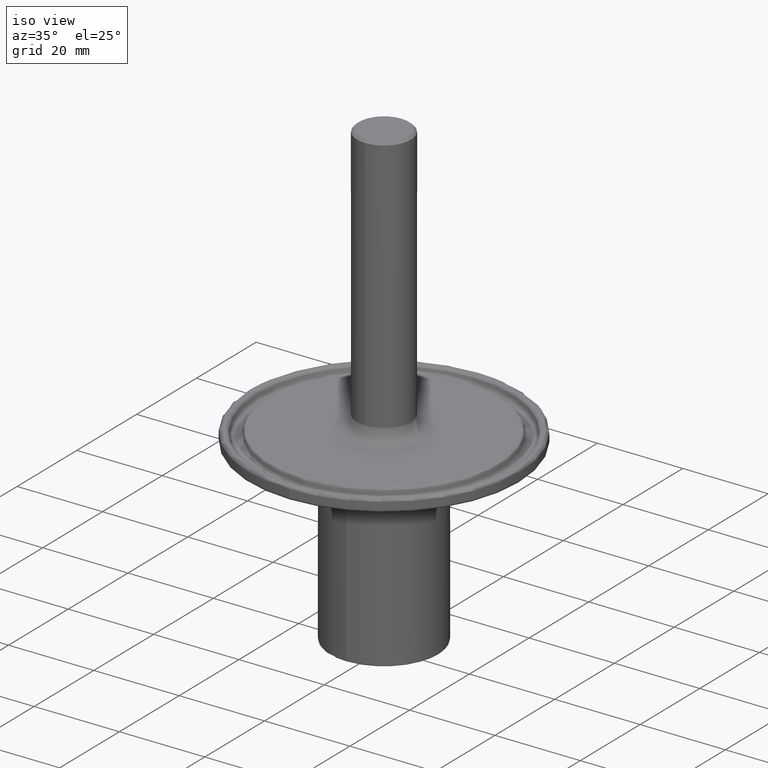
[diagram: clean part render]
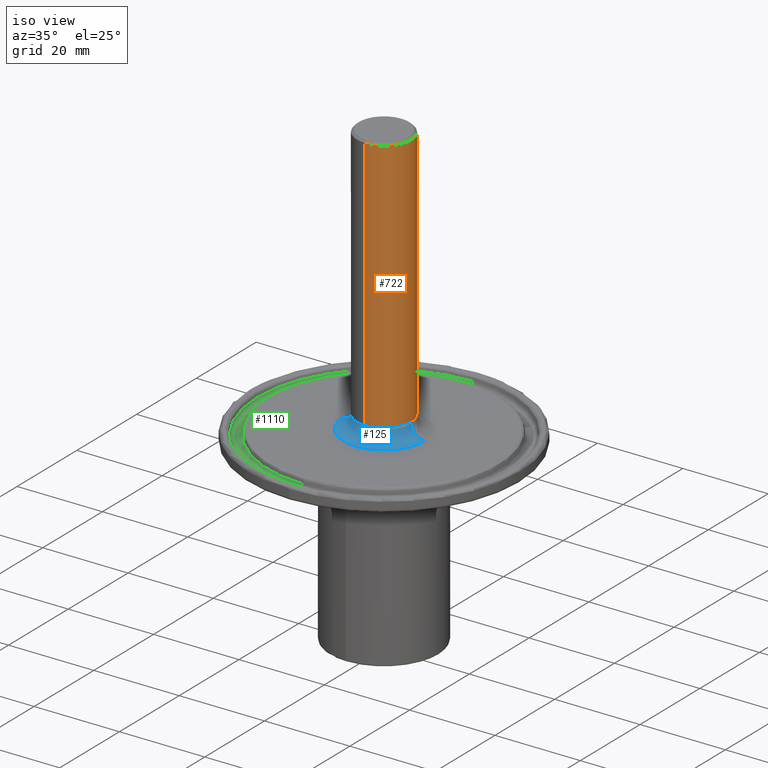
[diagram: same view with three faces highlighted in distinct colors, each labeled with its STEP entity id]
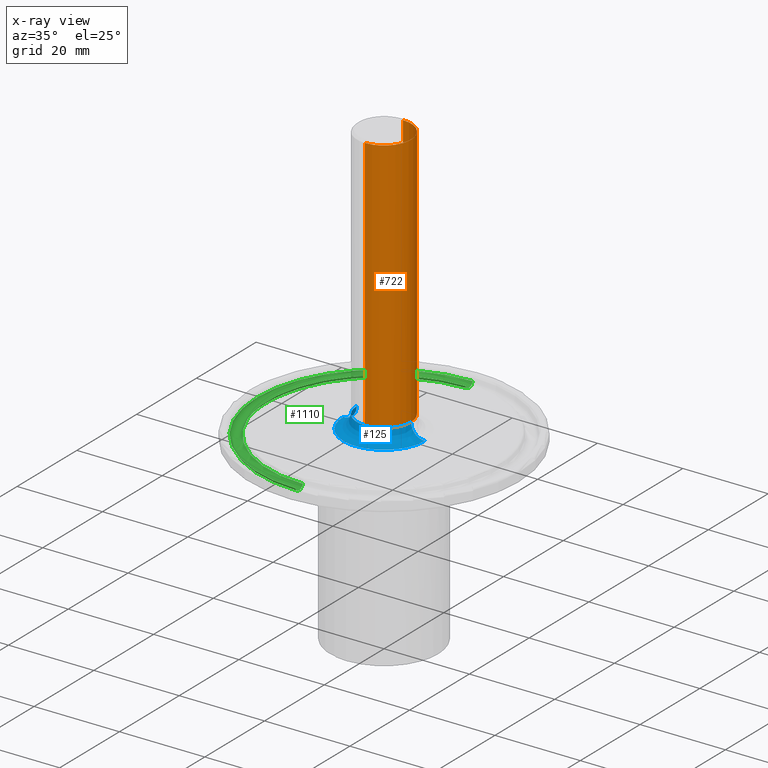
[diagram: x-ray of the same camera — body ghosted, the three highlighted faces saturated]
A machine part, iso view with three faces highlighted in distinct colors.
The next image is the same camera in x-ray (body ghosted, the three faces saturated) — at least one of them is partly hidden behind the body in this view.
Their STEP definitions:

[orange] entity #722 — the highlighted cylindrical surface (edge-blend (fillet) strip) has radius 6.35 mm, axis along (0, 0, -1).
#38 = EDGE_CURVE ( 'NONE', #985, #1361, #1377, .T. ) ;
#85 = CIRCLE ( 'NONE', #1450, 0.2499999999999990000 ) ;
#101 = DIRECTION ( 'NONE',  ( 0.0000000000000000000, 1.000000000000000000, 0.0000000000000000000 ) ) ;
#120 = CIRCLE ( 'NONE', #387, 0.2499999999999990300 ) ;
#220 = DIRECTION ( 'NONE',  ( 0.0000000000000000000, 0.0000000000000000000, 1.000000000000000000 ) ) ;
#387 = AXIS2_PLACEMENT_3D ( 'NONE', #2342, #220, #1002 ) ;
#388 = VERTEX_POINT ( 'NONE', #1719 ) ;
#540 = EDGE_CURVE ( 'NONE', #388, #563, #85, .T. ) ;
#563 = VERTEX_POINT ( 'NONE', #1660 ) ;
#566 = LINE ( 'NONE', #756, #1048 ) ;
#722 = ADVANCED_FACE ( 'NONE', ( #1804 ), #1080, .T. ) ;
#729 = CARTESIAN_POINT ( 'NONE',  ( 0.2499999999999989700, -1.463865379496466200E-015, 1.875000000000000000 ) ) ;
#756 = CARTESIAN_POINT ( 'NONE',  ( 0.0000000000000000000, 0.2499999999999966100, 2.999999999999999600 ) ) ;
#857 = EDGE_CURVE ( 'NONE', #388, #1361, #566, .T. ) ;
#868 = CARTESIAN_POINT ( 'NONE',  ( 0.0000000000000000000, -3.371550375615952900E-015, 4.230000000000000400 ) ) ;
#936 = DIRECTION ( 'NONE',  ( 0.0000000000000000000, 7.970568263867499800E-016, -1.000000000000000000 ) ) ;
#950 = DIRECTION ( 'NONE',  ( 0.0000000000000000000, -1.000000000000000000, -1.092739197465709600E-015 ) ) ;
#985 = VERTEX_POINT ( 'NONE', #729 ) ;
#1002 = DIRECTION ( 'NONE',  ( 1.000000000000000000, 0.0000000000000000000, 0.0000000000000000000 ) ) ;
#1048 = VECTOR ( 'NONE', #2491, 39.37007874015748100 ) ;
#1080 = CYLINDRICAL_SURFACE ( 'NONE', #1633, 0.2499999999999990000 ) ;
#1155 = CARTESIAN_POINT ( 'NONE',  ( 3.061616997868370700E-017, -0.2500000000000005600, 1.875000000000000000 ) ) ;
#1205 = VECTOR ( 'NONE', #1492, 39.37007874015748100 ) ;
#1215 = ORIENTED_EDGE ( 'NONE', *, *, #2198, .T. ) ;
#1251 = DIRECTION ( 'NONE',  ( 0.0000000000000000000, 7.970568263867499800E-016, -1.000000000000000000 ) ) ;
#1341 = ORIENTED_EDGE ( 'NONE', *, *, #1898, .T. ) ;
#1361 = VERTEX_POINT ( 'NONE', #2044 ) ;
#1364 = ORIENTED_EDGE ( 'NONE', *, *, #38, .T. ) ;
#1377 = CIRCLE ( 'NONE', #1969, 0.2499999999999990000 ) ;
#1408 = LINE ( 'NONE', #1872, #1205 ) ;
#1450 = AXIS2_PLACEMENT_3D ( 'NONE', #868, #1251, #101 ) ;
#1459 = VERTEX_POINT ( 'NONE', #1155 ) ;
#1492 = DIRECTION ( 'NONE',  ( 0.0000000000000000000, 7.970568263867499800E-016, -1.000000000000000000 ) ) ;
#1633 = AXIS2_PLACEMENT_3D ( 'NONE', #1885, #936, #1724 ) ;
#1660 = CARTESIAN_POINT ( 'NONE',  ( 3.061616997890732400E-017, -0.2500000000018282600, 4.230000000000000400 ) ) ;
#1697 = CARTESIAN_POINT ( 'NONE',  ( 0.0000000000000000000, -1.479173464485808100E-015, 1.875000000000000000 ) ) ;
#1719 = CARTESIAN_POINT ( 'NONE',  ( 0.0000000000000000000, 0.2500000000018222600, 4.230000000000000400 ) ) ;
#1724 = DIRECTION ( 'NONE',  ( 0.0000000000000000000, 1.000000000000000000, 0.0000000000000000000 ) ) ;
#1804 = FACE_OUTER_BOUND ( 'NONE', #2106, .T. ) ;
#1872 = CARTESIAN_POINT ( 'NONE',  ( 3.061616997868370700E-017, -0.2500000000000013900, 2.999999999999999600 ) ) ;
#1885 = CARTESIAN_POINT ( 'NONE',  ( 0.0000000000000000000, -2.391170479160249800E-015, 2.999999999999999600 ) ) ;
#1898 = EDGE_CURVE ( 'NONE', #563, #1459, #1408, .T. ) ;
#1959 = ORIENTED_EDGE ( 'NONE', *, *, #540, .T. ) ;
#1969 = AXIS2_PLACEMENT_3D ( 'NONE', #1697, #2300, #950 ) ;
#1989 = ORIENTED_EDGE ( 'NONE', *, *, #857, .F. ) ;
#2044 = CARTESIAN_POINT ( 'NONE',  ( 2.038776371176236800E-047, 0.2499999999999975300, 1.875000000000000000 ) ) ;
#2106 = EDGE_LOOP ( 'NONE', ( #1959, #1341, #1215, #1364, #1989 ) ) ;
#2198 = EDGE_CURVE ( 'NONE', #1459, #985, #120, .T. ) ;
#2300 = DIRECTION ( 'NONE',  ( 1.492598692097504800E-031, -5.463695987328551100E-016, 1.000000000000000000 ) ) ;
#2342 = CARTESIAN_POINT ( 'NONE',  ( -1.136491450489234400E-016, -1.485540871001791700E-015, 1.875000000000000000 ) ) ;
#2491 = DIRECTION ( 'NONE',  ( 0.0000000000000000000, 7.970568263867499800E-016, -1.000000000000000000 ) ) ;

[blue] entity #125 — the highlighted face is a freeform B-spline surface patch.
#1 = CARTESIAN_POINT ( 'NONE',  ( -0.2258993253624237100, -0.3746553855250192000, 1.750000000000000000 ) ) ;
#11 = CARTESIAN_POINT ( 'NONE',  ( 0.2416920312134359900, -0.2872440330578684400, 1.749999999999998900 ) ) ;
#22 = CARTESIAN_POINT ( 'NONE',  ( 0.3703219163674877900, -0.05927419297823460100, 1.749999999999998900 ) ) ;
#32 = CARTESIAN_POINT ( 'NONE',  ( 0.2559859598989654400, -0.2743587110812255600, 1.749999999999999100 ) ) ;
#48 = CARTESIAN_POINT ( 'NONE',  ( -0.3644003608362524300, -0.08893091464120052300, 1.749999999999999100 ) ) ;
#50 = CARTESIAN_POINT ( 'NONE',  ( -0.3750020596087453300, -1.394849446176806200E-015, 1.750000000000000200 ) ) ;
#57 = CARTESIAN_POINT ( 'NONE',  ( -0.3589902938301571300, -0.1096798864633804400, 1.749999999999999100 ) ) ;
#64 = CARTESIAN_POINT ( 'NONE',  ( -0.3530722555778289000, -0.1270139453182453400, 1.749999999999999300 ) ) ;
#71 = CARTESIAN_POINT ( 'NONE',  ( -0.09854546575081485300, -0.3622000057685440500, 1.749999999999998900 ) ) ;
#75 = DIRECTION ( 'NONE',  ( 0.0000000000000000000, 0.0000000000000000000, 1.000000000000000000 ) ) ;
#96 = CARTESIAN_POINT ( 'NONE',  ( -0.2499999999999990000, -1.494481549475150200E-015, 1.875000000000000000 ) ) ;
#103 = ORIENTED_EDGE ( 'NONE', *, *, #1148, .T. ) ;
#120 = CIRCLE ( 'NONE', #387, 0.2499999999999990300 ) ;
#125 = ADVANCED_FACE ( 'NONE', ( #2090 ), #2040, .F. ) ;
#151 = CARTESIAN_POINT ( 'NONE',  ( -0.002356161286735071700, -0.2499888967614184200, 1.801776695296637000 ) ) ;
#161 = CARTESIAN_POINT ( 'NONE',  ( -0.3761116839898424600, 0.007090383043004910000, 1.750000000000000200 ) ) ;
#162 = CARTESIAN_POINT ( 'NONE',  ( 0.3749999999999985000, -1.322418022719366700E-015, 1.749999999999999600 ) ) ;
#169 = CARTESIAN_POINT ( 'NONE',  ( -0.2499555880319260800, 0.004712113285301613500, 1.801776695296637200 ) ) ;
#177 = CARTESIAN_POINT ( 'NONE',  ( -0.3802962391642856200, -0.2148807127161507500, 1.750000000000000000 ) ) ;
#190 = CARTESIAN_POINT ( 'NONE',  ( 0.3254104268846795300, -0.1865686689319963600, 1.749999999999998400 ) ) ;
#199 = EDGE_CURVE ( 'NONE', #2510, #1098, #1458, .T. ) ;
#209 = CARTESIAN_POINT ( 'NONE',  ( 0.1948370365301152200, -0.3206945051328533000, 1.749999999999999300 ) ) ;
#220 = DIRECTION ( 'NONE',  ( 0.0000000000000000000, 0.0000000000000000000, 1.000000000000000000 ) ) ;
#226 = CARTESIAN_POINT ( 'NONE',  ( 0.1584507834869184900, -0.3399936142158129200, 1.749999999999999100 ) ) ;
#244 = CARTESIAN_POINT ( 'NONE',  ( -0.3729575694610510700, -0.04531992039923338200, 1.749999999999999100 ) ) ;
#250 = CARTESIAN_POINT ( 'NONE',  ( -0.3103412077505256500, -0.2105734246716344000, 1.749999999999998900 ) ) ;
#257 = CARTESIAN_POINT ( 'NONE',  ( 0.009611380957688559600, -0.3749074311755648000, 1.749999999999998900 ) ) ;
#267 = CARTESIAN_POINT ( 'NONE',  ( -0.04875609190805366100, -0.3718986453840735200, 1.749999999999998900 ) ) ;
#353 = CARTESIAN_POINT ( 'NONE',  ( 0.2184553263337090100, -0.3782541746185143500, 1.750000000000000000 ) ) ;
#363 = CARTESIAN_POINT ( 'NONE',  ( 0.2187975203497500300, -0.3788466816416630200, 1.750000000000000000 ) ) ;
#368 = CARTESIAN_POINT ( 'NONE',  ( 0.2181131323176680700, -0.3776616675953655700, 1.750000000000000000 ) ) ;
#382 = CARTESIAN_POINT ( 'NONE',  ( 0.3017766952966360900, -1.223876685616130600E-015, 1.750000000000000000 ) ) ;
#387 = AXIS2_PLACEMENT_3D ( 'NONE', #2342, #220, #1002 ) ;
#390 = CARTESIAN_POINT ( 'NONE',  ( -0.3808919449296196400, -0.2152173073659042500, 1.750000000000000000 ) ) ;
#402 = AXIS2_PLACEMENT_3D ( 'NONE', #671, #75, #1415 ) ;
#418 = CARTESIAN_POINT ( 'NONE',  ( -0.003550902506336811800, -0.3767510335833410600, 1.750000000000000000 ) ) ;
#427 = CARTESIAN_POINT ( 'NONE',  ( -0.2005364693771089800, -0.3169132802965854400, 1.749999999999998400 ) ) ;
#437 = CARTESIAN_POINT ( 'NONE',  ( -0.3685323000012327200, -0.06935019204675617300, 1.749999999999999100 ) ) ;
#442 = CARTESIAN_POINT ( 'NONE',  ( -0.3750061788262373800, 4.004495076022205900E-009, 1.749999999999999600 ) ) ;
#449 = CARTESIAN_POINT ( 'NONE',  ( -0.06708918023261333000, -0.3689505064467744100, 1.749999999999999600 ) ) ;
#454 = CARTESIAN_POINT ( 'NONE',  ( -0.1951860811379190200, -0.3202342331409029400, 1.749999999999999300 ) ) ;
#502 =( BOUNDED_CURVE ( )  B_SPLINE_CURVE ( 3, ( #162, #2108, #744, #1503 ),
 .UNSPECIFIED., .F., .F. ) 
 B_SPLINE_CURVE_WITH_KNOTS ( ( 4, 4 ),
 ( 0.01000000000000000500, 1.010000000000000000 ),
 .UNSPECIFIED. ) 
 CURVE ( )  GEOMETRIC_REPRESENTATION_ITEM ( )  RATIONAL_B_SPLINE_CURVE ( ( 1.000000000000000000, 0.8047378541243643800, 0.8047378541243643800, 1.000000000000000000 ) ) 
 REPRESENTATION_ITEM ( '' )  );
#530 = CARTESIAN_POINT ( 'NONE',  ( 0.1752485175795006900, -0.3034418271353614400, 1.750000000000000000 ) ) ;
#537 = CARTESIAN_POINT ( 'NONE',  ( -0.003545348980925413200, -0.3761618041029366500, 1.750000000000000000 ) ) ;
#554 = CARTESIAN_POINT ( 'NONE',  ( -0.1498929481078878600, -0.2485983531413589500, 1.801776695296636800 ) ) ;
#561 = CARTESIAN_POINT ( 'NONE',  ( -0.002356161286735071700, -0.2499888967614184700, 1.874999999999999800 ) ) ;
#569 = CARTESIAN_POINT ( 'NONE',  ( 0.1096944226034289500, -0.3589615852447481900, 1.749999999999998900 ) ) ;
#577 = CARTESIAN_POINT ( 'NONE',  ( 0.3526924993499084300, -0.1274887733087151600, 1.749999999999999100 ) ) ;
#584 = CARTESIAN_POINT ( 'NONE',  ( -0.3767008349608186300, 0.007101489600530766500, 1.750000000000000200 ) ) ;
#592 = VERTEX_POINT ( 'NONE', #96 ) ;
#595 = CARTESIAN_POINT ( 'NONE',  ( 0.1408489408779597100, -0.3475444772228158400, 1.749999999999998900 ) ) ;
#605 = CARTESIAN_POINT ( 'NONE',  ( 0.3621135782725980500, -0.09880579824171668900, 1.749999999999999300 ) ) ;
#618 = CARTESIAN_POINT ( 'NONE',  ( -0.1507263345340598700, -0.3436194653503407100, 1.749999999999998900 ) ) ;
#627 = CARTESIAN_POINT ( 'NONE',  ( -0.1375410559025707100, -0.3488884157957535300, 1.749999999999998900 ) ) ;
#636 = CARTESIAN_POINT ( 'NONE',  ( -0.3399101933125861500, -0.1586358083190732800, 1.749999999999999300 ) ) ;
#637 = CARTESIAN_POINT ( 'NONE',  ( -0.3749999999999993300, -1.394849446176806200E-015, 1.750000000000000200 ) ) ;
#644 = CARTESIAN_POINT ( 'NONE',  ( -0.3678041500480313000, -0.07313910314286616000, 1.749999999999999100 ) ) ;
#671 = CARTESIAN_POINT ( 'NONE',  ( -1.136491450489234400E-016, -1.485540871001791700E-015, 1.875000000000000000 ) ) ;
#727 = CARTESIAN_POINT ( 'NONE',  ( -0.2248394221618323600, -0.3728975297120386600, 1.750000000000000000 ) ) ;
#729 = CARTESIAN_POINT ( 'NONE',  ( 0.2499999999999989700, -1.463865379496466200E-015, 1.875000000000000000 ) ) ;
#734 = CARTESIAN_POINT ( 'NONE',  ( -0.3017230853088094800, 0.005688023900407145900, 1.750000000000000000 ) ) ;
#743 = CARTESIAN_POINT ( 'NONE',  ( -0.002844138266787130500, -0.3017632925020519700, 1.749999999999999600 ) ) ;
#744 = CARTESIAN_POINT ( 'NONE',  ( 0.2499999999999990000, -1.405502244632053800E-015, 1.801776695296637000 ) ) ;
#762 = CARTESIAN_POINT ( 'NONE',  ( 0.3749999999999995000, -0.2213150094851393000, 1.750000000000000000 ) ) ;
#768 =( BOUNDED_CURVE ( )  B_SPLINE_CURVE ( 3, ( #2160, #2176, #1202, #637, #50, #2352, #442 ),
 .UNSPECIFIED., .F., .T. ) 
 B_SPLINE_CURVE_WITH_KNOTS ( ( 4, 3, 4 ),
 ( 0.0000000000000000000, 1.000000000000000000, 1.000034952719461600 ),
 .UNSPECIFIED. ) 
 CURVE ( )  GEOMETRIC_REPRESENTATION_ITEM ( )  RATIONAL_B_SPLINE_CURVE ( ( 1.000000000000000000, 0.8047378541243643800, 0.8047378541243643800, 1.000000000000000000, 1.000000000000000000, 1.000000000000000000, 1.000000000000000000 ) ) 
 REPRESENTATION_ITEM ( '' )  );
#770 = CARTESIAN_POINT ( 'NONE',  ( 0.3197418679241458800, -0.1959816277983947000, 1.749999999999998900 ) ) ;
#785 = CARTESIAN_POINT ( 'NONE',  ( 0.3147119808698304900, -0.2039212573524086000, 1.749999999999999300 ) ) ;
#796 = CARTESIAN_POINT ( 'NONE',  ( 0.1385737556027842600, -0.3484577695088713100, 1.749999999999999100 ) ) ;
#811 = CARTESIAN_POINT ( 'NONE',  ( -0.3121558531747937700, -0.2078705494254577700, 1.749999999999999100 ) ) ;
#820 = CARTESIAN_POINT ( 'NONE',  ( -0.3682437084323717500, -0.07086669559798260100, 1.749999999999999300 ) ) ;
#826 = CARTESIAN_POINT ( 'NONE',  ( 0.005222434240340263900, -0.3749780321815761600, 1.749999999999998900 ) ) ;
#841 = CARTESIAN_POINT ( 'NONE',  ( -0.06567994668191629000, -0.3692039817804445600, 1.749999999999998900 ) ) ;
#922 = CARTESIAN_POINT ( 'NONE',  ( 0.3755892556509881100, -1.182057892433873800E-015, 1.750000000000000200 ) ) ;
#935 = CIRCLE ( 'NONE', #402, 0.2499999999999990300 ) ;
#941 = CARTESIAN_POINT ( 'NONE',  ( -0.3755225330188662900, 0.007079276485479053500, 1.750000000000000200 ) ) ;
#956 = CARTESIAN_POINT ( 'NONE',  ( 0.08950988436381081300, -0.3642671379139287800, 1.749999999999998900 ) ) ;
#960 = ORIENTED_EDGE ( 'NONE', *, *, #1667, .T. ) ;
#964 = CARTESIAN_POINT ( 'NONE',  ( 0.3688417595674880500, -0.06777440740721071800, 1.749999999999999600 ) ) ;
#972 = CARTESIAN_POINT ( 'NONE',  ( 0.2107939878337608000, -0.3101847365618590200, 1.749999999999998200 ) ) ;
#980 = CARTESIAN_POINT ( 'NONE',  ( 0.2995836263792182600, -0.2270542207820529800, 1.749999999999999300 ) ) ;
#985 = VERTEX_POINT ( 'NONE', #729 ) ;
#990 = CARTESIAN_POINT ( 'NONE',  ( 0.3663180487864010600, -0.08117754272737587300, 1.749999999999999300 ) ) ;
#999 = CARTESIAN_POINT ( 'NONE',  ( -0.01198473465041386200, -0.3749983052951022500, 1.749999999999998400 ) ) ;
#1002 = DIRECTION ( 'NONE',  ( 1.000000000000000000, 0.0000000000000000000, 0.0000000000000000000 ) ) ;
#1006 = CARTESIAN_POINT ( 'NONE',  ( -0.08063178090932485200, -0.3664381191490117500, 1.749999999999998900 ) ) ;
#1023 = CARTESIAN_POINT ( 'NONE',  ( -0.3443561498852135700, -0.1485664833723147300, 1.749999999999998200 ) ) ;
#1030 = CARTESIAN_POINT ( 'NONE',  ( -0.3667318166005613100, -0.07842495294056808800, 1.749999999999999100 ) ) ;
#1038 = ORIENTED_EDGE ( 'NONE', *, *, #199, .F. ) ;
#1098 = VERTEX_POINT ( 'NONE', #1723 ) ;
#1111 = CARTESIAN_POINT ( 'NONE',  ( -0.003539795455514014200, -0.3755725746225321800, 1.750000000000000000 ) ) ;
#1122 = CARTESIAN_POINT ( 'NONE',  ( -0.3797005333989516000, -0.2145441180663972000, 1.750000000000000000 ) ) ;
#1130 = CARTESIAN_POINT ( 'NONE',  ( -0.1498929481078878900, -0.2485983531413590000, 1.874999999999999800 ) ) ;
#1135 = CARTESIAN_POINT ( 'NONE',  ( 0.2499999999999990000, -1.294479942169538000E-015, 1.801776695296637000 ) ) ;
#1148 = EDGE_CURVE ( 'NONE', #592, #1098, #768, .T. ) ;
#1149 = CARTESIAN_POINT ( 'NONE',  ( 0.08078179623082544500, -0.3662273826745545100, 1.749999999999998400 ) ) ;
#1155 = CARTESIAN_POINT ( 'NONE',  ( 3.061616997868370700E-017, -0.2500000000000005600, 1.875000000000000000 ) ) ;
#1157 = CARTESIAN_POINT ( 'NONE',  ( 0.3505914068405678300, -0.1331626988308182400, 1.749999999999999100 ) ) ;
#1166 = CARTESIAN_POINT ( 'NONE',  ( 0.3690895179911811700, -0.06641292876960885900, 1.750000000000000000 ) ) ;
#1176 = CARTESIAN_POINT ( 'NONE',  ( 0.3749999999999989500, -0.01168956885069882500, 1.749999999999998900 ) ) ;
#1183 = CARTESIAN_POINT ( 'NONE',  ( 0.3718477429286295400, -0.04925288515045087000, 1.749999999999999300 ) ) ;
#1190 = CARTESIAN_POINT ( 'NONE',  ( -0.3461829798706385600, -0.1442100704887430100, 1.749999999999999100 ) ) ;
#1201 = CARTESIAN_POINT ( 'NONE',  ( -0.3302848670741174700, -0.1783919044196197200, 1.749999999999998900 ) ) ;
#1202 = CARTESIAN_POINT ( 'NONE',  ( -0.3017766952966360900, -1.394849446176805800E-015, 1.750000000000000000 ) ) ;
#1207 = CARTESIAN_POINT ( 'NONE',  ( -0.06773983504098979300, -0.3688317441560281000, 1.749999999999999100 ) ) ;
#1214 = CARTESIAN_POINT ( 'NONE',  ( -0.3479933079078879600, -0.1397891023916064400, 1.749999999999999100 ) ) ;
#1221 = CARTESIAN_POINT ( 'NONE',  ( -0.3473834043110830500, -0.1412966868093863100, 1.749999999999998400 ) ) ;
#1237 = CARTESIAN_POINT ( 'NONE',  ( 0.3749999999999985000, -1.322418022719366700E-015, 1.749999999999999600 ) ) ;
#1245 = ORIENTED_EDGE ( 'NONE', *, *, #2198, .F. ) ;
#1294 = CARTESIAN_POINT ( 'NONE',  ( 0.3761785113019770500, -0.2220105354584072900, 1.750000000000000000 ) ) ;
#1303 = CARTESIAN_POINT ( 'NONE',  ( -0.2255460242955598700, -0.3740694335873590600, 1.750000000000000000 ) ) ;
#1312 = CARTESIAN_POINT ( 'NONE',  ( 0.3755892556509882200, -0.2216627724717733000, 1.750000000000000000 ) ) ;
#1321 = CARTESIAN_POINT ( 'NONE',  ( 0.3761785113019768800, -1.181724047352740400E-015, 1.750000000000000200 ) ) ;
#1359 = CARTESIAN_POINT ( 'NONE',  ( 0.3695925377366124900, -0.06355879971624535400, 1.749999999999998900 ) ) ;
#1369 = CARTESIAN_POINT ( 'NONE',  ( 0.2080811540884801000, -0.3120120124196719700, 1.749999999999998900 ) ) ;
#1380 = CARTESIAN_POINT ( 'NONE',  ( -0.1871058842508811500, -0.3251107484333649000, 1.749999999999998400 ) ) ;
#1387 = CARTESIAN_POINT ( 'NONE',  ( -0.3686847408852321200, -0.06853482259839670200, 1.749999999999999100 ) ) ;
#1392 = CARTESIAN_POINT ( 'NONE',  ( 0.05756753377001880300, -0.3707507708736907900, 1.749999999999998900 ) ) ;
#1402 = CARTESIAN_POINT ( 'NONE',  ( 0.07196313131715655100, -0.3680587567975961400, 1.749999999999998900 ) ) ;
#1412 = CARTESIAN_POINT ( 'NONE',  ( -0.3750215555567819600, -0.02270947182616847900, 1.749999999999999600 ) ) ;
#1415 = DIRECTION ( 'NONE',  ( 1.000000000000000000, 0.0000000000000000000, 0.0000000000000000000 ) ) ;
#1458 = B_SPLINE_CURVE_WITH_KNOTS ( 'NONE', 3,
 ( #1749, #1176, #2511, #1183, #22, #1359, #1166, #964, #990, #605, #2131, #577, #1157, #2322, #2349, #1941, #190, #770, #1546, #1538, #785, #980, #2149, #32, #11, #2140, #2126, #972, #1369, #209, #2313, #226, #2332, #1737, #595, #1950, #796, #1721, #569, #956, #1149, #1531, #1402, #1392, #1599, #1970, #257, #826, #2003, #2175, #999, #1572, #267, #2372, #2165, #841, #449, #1207, #1006, #71, #2185, #2200, #1583, #1592, #627, #618, #2368, #1380, #454, #427, #1788, #1766, #2381, #1776, #2391, #1977, #1984, #250, #811, #1797, #1201, #636, #1023, #1190, #1221, #1214, #64, #57, #48, #1030, #644, #820, #437, #1387, #244, #1412, #1784 ),
 .UNSPECIFIED., .F., .F.,
 ( 4, 1, 1, 1, 2, 2, 1, 1, 2, 2, 1, 1, 1, 2, 2, 2, 1, 1, 2, 2, 1, 1, 1, 1, 2, 2, 1, 1, 2, 2, 1, 1, 1, 2, 2, 1, 1, 1, 1, 2, 2, 1, 1, 1, 2, 2, 1, 1, 2, 2, 2, 1, 1, 2, 2, 1, 1, 1, 2, 2, 1, 1, 1, 1, 2, 2, 4 ),
 ( 0.0000000000000000000, 0.03124999999999962500, 0.04687499999999941700, 0.05468749999999932000, 0.05859374999999926400, 0.06249999999999920900, 0.09374999999999907000, 0.1093749999999989700, 0.1171874999999989300, 0.1249999999999988900, 0.1562499999999987500, 0.1718749999999987500, 0.1796874999999987200, 0.1835937499999987500, 0.1874999999999987500, 0.2499999999999982800, 0.2812499999999980600, 0.2968749999999978900, 0.3046874999999977800, 0.3124999999999977200, 0.3437499999999975600, 0.3593749999999974500, 0.3671874999999974500, 0.3710937499999974500, 0.3730468749999974500, 0.3749999999999975000, 0.4062499999999977200, 0.4218749999999978900, 0.4296874999999979500, 0.4374999999999980000, 0.4687499999999984500, 0.4843749999999986100, 0.4921874999999987800, 0.4960937499999988300, 0.4999999999999988900, 0.5312499999999993300, 0.5468749999999994400, 0.5546874999999995600, 0.5585937499999996700, 0.5605468749999995600, 0.5624999999999995600, 0.5937499999999995600, 0.6093749999999995600, 0.6171874999999995600, 0.6210937499999996700, 0.6249999999999996700, 0.6562500000000000000, 0.6718750000000001100, 0.6796875000000003300, 0.6875000000000004400, 0.7500000000000007800, 0.7812500000000010000, 0.7968750000000010000, 0.8046875000000010000, 0.8125000000000010000, 0.8437500000000011100, 0.8593750000000011100, 0.8671875000000011100, 0.8710937500000011100, 0.8750000000000010000, 0.9062500000000010000, 0.9218750000000008900, 0.9296875000000010000, 0.9335937500000008900, 0.9355468750000008900, 0.9375000000000008900, 1.000000000000000000 ),
 .UNSPECIFIED. ) ;
#1459 = VERTEX_POINT ( 'NONE', #1155 ) ;
#1493 = CARTESIAN_POINT ( 'NONE',  ( 0.3749999999999993300, -1.182391737515007400E-015, 1.750000000000000200 ) ) ;
#1502 = CARTESIAN_POINT ( 'NONE',  ( 0.3767677669529656500, -1.181390202271606800E-015, 1.750000000000000200 ) ) ;
#1503 = CARTESIAN_POINT ( 'NONE',  ( 0.2499999999999989700, -1.463865379496466200E-015, 1.875000000000000000 ) ) ;
#1509 = CARTESIAN_POINT ( 'NONE',  ( 0.2499999999999990000, -1.352843077033951000E-015, 1.875000000000000000 ) ) ;
#1516 = CARTESIAN_POINT ( 'NONE',  ( 0.3767677669529658200, -0.2223582984450413200, 1.750000000000000000 ) ) ;
#1522 = CARTESIAN_POINT ( 'NONE',  ( 0.3017766952966361400, -0.1781005658185845800, 1.750000000000000000 ) ) ;
#1530 = EDGE_CURVE ( 'NONE', #592, #1459, #935, .T. ) ;
#1531 = CARTESIAN_POINT ( 'NONE',  ( 0.07494583264337353900, -0.3674645317313791600, 1.749999999999999600 ) ) ;
#1538 = CARTESIAN_POINT ( 'NONE',  ( 0.3155403639493041300, -0.2026368257429331800, 1.749999999999999300 ) ) ;
#1546 = CARTESIAN_POINT ( 'NONE',  ( 0.3172317325949171600, -0.1999795708547335000, 1.749999999999998900 ) ) ;
#1552 = EDGE_LOOP ( 'NONE', ( #2437, #103, #1038, #960, #1245 ) ) ;
#1572 = CARTESIAN_POINT ( 'NONE',  ( -0.02897980387111940100, -0.3741971428235556000, 1.749999999999998900 ) ) ;
#1583 = CARTESIAN_POINT ( 'NONE',  ( -0.1333066351293262800, -0.3505298261608271200, 1.749999999999998900 ) ) ;
#1592 = CARTESIAN_POINT ( 'NONE',  ( -0.1361608408286877100, -0.3494298214790450600, 1.749999999999999600 ) ) ;
#1599 = CARTESIAN_POINT ( 'NONE',  ( 0.04021528021336305500, -0.3731679428361030500, 1.749999999999998400 ) ) ;
#1667 = EDGE_CURVE ( 'NONE', #2510, #985, #502, .T. ) ;
#1706 = CARTESIAN_POINT ( 'NONE',  ( -0.1809367941130750100, -0.3000847578687426100, 1.750000000000000000 ) ) ;
#1714 = CARTESIAN_POINT ( 'NONE',  ( 0.2499999999999990600, -0.1475433396567597300, 1.875000000000000200 ) ) ;
#1721 = CARTESIAN_POINT ( 'NONE',  ( 0.1266851684019341700, -0.3531597145664999200, 1.749999999999999600 ) ) ;
#1723 = CARTESIAN_POINT ( 'NONE',  ( -0.3750061788262373800, 4.004495076022205900E-009, 1.749999999999999600 ) ) ;
#1737 = CARTESIAN_POINT ( 'NONE',  ( 0.1430730140786259400, -0.3466406359426668100, 1.749999999999998200 ) ) ;
#1749 = CARTESIAN_POINT ( 'NONE',  ( 0.3749999999999985000, -1.322418022719366700E-015, 1.749999999999999600 ) ) ;
#1766 = CARTESIAN_POINT ( 'NONE',  ( -0.2272468503621686600, -0.2994444911549694100, 1.749999999999998400 ) ) ;
#1776 = CARTESIAN_POINT ( 'NONE',  ( -0.2745675467838254400, -0.2557465708413502700, 1.749999999999999100 ) ) ;
#1784 = CARTESIAN_POINT ( 'NONE',  ( -0.3750061788262373800, 4.004495076022205900E-009, 1.749999999999999600 ) ) ;
#1788 = CARTESIAN_POINT ( 'NONE',  ( -0.2031554171787806100, -0.3152427787686640800, 1.749999999999998400 ) ) ;
#1797 = CARTESIAN_POINT ( 'NONE',  ( -0.3207773078527788600, -0.1946698945749964200, 1.749999999999998400 ) ) ;
#1881 = CARTESIAN_POINT ( 'NONE',  ( 0.2177709383016271400, -0.3770691605722168400, 1.750000000000000000 ) ) ;
#1891 = CARTESIAN_POINT ( 'NONE',  ( -0.3749333820478901200, 0.007068169927953196900, 1.750000000000000200 ) ) ;
#1899 = CARTESIAN_POINT ( 'NONE',  ( 0.1451806255344177700, -0.2513794403814778600, 1.801776695296636800 ) ) ;
#1909 = CARTESIAN_POINT ( 'NONE',  ( -0.003534241930102615600, -0.3749833451421277200, 1.750000000000000000 ) ) ;
#1915 = CARTESIAN_POINT ( 'NONE',  ( 0.2499999999999990600, -0.1475433396567596700, 1.801776695296636800 ) ) ;
#1941 = CARTESIAN_POINT ( 'NONE',  ( 0.3359938509084089400, -0.1674050509261026100, 1.749999999999998400 ) ) ;
#1950 = CARTESIAN_POINT ( 'NONE',  ( 0.1393636302680410800, -0.3481426825284141800, 1.749999999999999300 ) ) ;
#1970 = CARTESIAN_POINT ( 'NONE',  ( 0.01983529552210634700, -0.3745647981666736000, 1.749999999999998200 ) ) ;
#1977 = CARTESIAN_POINT ( 'NONE',  ( -0.3011447655445655400, -0.2236716516304815000, 1.749999999999998400 ) ) ;
#1984 = CARTESIAN_POINT ( 'NONE',  ( -0.3067025281602899200, -0.2158423484359532100, 1.749999999999999300 ) ) ;
#2003 = CARTESIAN_POINT ( 'NONE',  ( 0.002294854418356215800, -0.3750081569162317400, 1.749999999999998200 ) ) ;
#2040 =( BOUNDED_SURFACE ( )  B_SPLINE_SURFACE ( 3, 3, ( 
 ( #1509, #1714, #2277, #561, #1130, #2115, #2283 ),
 ( #1135, #1915, #1899, #151, #554, #2489, #169 ),
 ( #382, #1522, #530, #743, #1706, #2098, #734 ),
 ( #1493, #762, #1881, #1909, #727, #2496, #1891 ),
 ( #922, #1312, #368, #1111, #2472, #1122, #941 ),
 ( #1321, #1294, #353, #537, #1303, #177, #161 ),
 ( #1502, #1516, #363, #418, #1, #390, #584 ) ),
 .UNSPECIFIED., .F., .F., .F. ) 
 B_SPLINE_SURFACE_WITH_KNOTS ( ( 4, 3, 4 ),
 ( 4, 3, 4 ),
 ( 0.0000000000000000000, 1.000000000000000000, 1.010000000000000000 ),
 ( 0.0000000000000000000, 0.5000000000000000000, 1.000000000000000000 ),
 .UNSPECIFIED. ) 
 GEOMETRIC_REPRESENTATION_ITEM ( )  RATIONAL_B_SPLINE_SURFACE ( (
 ( 1.000000000000000000, 0.8025111851486265200, 0.8025111851486265200, 1.000000000000000000, 0.8025111851486265200, 0.8025111851486265200, 1.000000000000000000),
 ( 0.8047378541243643800, 0.6458111290473062000, 0.6458111290473062000, 0.8047378541243643800, 0.6458111290473062000, 0.6458111290473062000, 0.8047378541243643800),
 ( 0.8047378541243643800, 0.6458111290473062000, 0.6458111290473062000, 0.8047378541243643800, 0.6458111290473062000, 0.6458111290473062000, 0.8047378541243643800),
 ( 1.000000000000000000, 0.8025111851486265200, 0.8025111851486265200, 1.000000000000000000, 0.8025111851486265200, 0.8025111851486265200, 1.000000000000000000),
 ( 1.000000000000000000, 0.8025111851486265200, 0.8025111851486265200, 1.000000000000000000, 0.8025111851486265200, 0.8025111851486265200, 1.000000000000000000),
 ( 1.000000000000000000, 0.8025111851486265200, 0.8025111851486265200, 1.000000000000000000, 0.8025111851486265200, 0.8025111851486265200, 1.000000000000000000),
 ( 1.000000000000000000, 0.8025111851486265200, 0.8025111851486265200, 1.000000000000000000, 0.8025111851486265200, 0.8025111851486265200, 1.000000000000000000) ) ) 
 REPRESENTATION_ITEM ( '' )  SURFACE ( )  );
#2090 = FACE_OUTER_BOUND ( 'NONE', #1552, .T. ) ;
#2098 = CARTESIAN_POINT ( 'NONE',  ( -0.3050800054780644600, -0.1723809027316046400, 1.750000000000000000 ) ) ;
#2108 = CARTESIAN_POINT ( 'NONE',  ( 0.3017766952966360900, -1.357892459781577100E-015, 1.750000000000000000 ) ) ;
#2115 = CARTESIAN_POINT ( 'NONE',  ( -0.2527365517557444400, -0.1428050156110960100, 1.875000000000000200 ) ) ;
#2126 = CARTESIAN_POINT ( 'NONE',  ( 0.2160777736522218900, -0.3065255709103104600, 1.749999999999998900 ) ) ;
#2131 = CARTESIAN_POINT ( 'NONE',  ( 0.3557391977632081700, -0.1189475610781588900, 1.749999999999999100 ) ) ;
#2140 = CARTESIAN_POINT ( 'NONE',  ( 0.2239255809414206500, -0.3009414311818875400, 1.749999999999998400 ) ) ;
#2149 = CARTESIAN_POINT ( 'NONE',  ( 0.2833278742541415800, -0.2470618071103428400, 1.749999999999999100 ) ) ;
#2160 = CARTESIAN_POINT ( 'NONE',  ( -0.2499999999999990000, -1.494481549475150200E-015, 1.875000000000000000 ) ) ;
#2165 = CARTESIAN_POINT ( 'NONE',  ( -0.06356586737051107800, -0.3695781063528723000, 1.749999999999998400 ) ) ;
#2175 = CARTESIAN_POINT ( 'NONE',  ( 0.0007835498596390827100, -0.3750146880533287200, 1.749999999999998400 ) ) ;
#2176 = CARTESIAN_POINT ( 'NONE',  ( -0.2499999999999990000, -1.436118414610737200E-015, 1.801776695296637000 ) ) ;
#2185 = CARTESIAN_POINT ( 'NONE',  ( -0.1189430234128034000, -0.3557525035242186100, 1.749999999999999100 ) ) ;
#2198 = EDGE_CURVE ( 'NONE', #1459, #985, #120, .T. ) ;
#2200 = CARTESIAN_POINT ( 'NONE',  ( -0.1290163669138600900, -0.3521529932436116600, 1.749999999999998400 ) ) ;
#2277 = CARTESIAN_POINT ( 'NONE',  ( 0.1451806255344177400, -0.2513794403814778600, 1.874999999999999800 ) ) ;
#2283 = CARTESIAN_POINT ( 'NONE',  ( -0.2499555880319261100, 0.004712113285301556200, 1.875000000000000000 ) ) ;
#2313 = CARTESIAN_POINT ( 'NONE',  ( 0.1784458280409842700, -0.3302772312045060800, 1.749999999999998400 ) ) ;
#2322 = CARTESIAN_POINT ( 'NONE',  ( 0.3495383898423172800, -0.1359078310365358900, 1.749999999999998900 ) ) ;
#2332 = CARTESIAN_POINT ( 'NONE',  ( 0.1482352692140323500, -0.3444859397033943100, 1.749999999999998900 ) ) ;
#2342 = CARTESIAN_POINT ( 'NONE',  ( -1.136491450489234400E-016, -1.485540871001791700E-015, 1.875000000000000000 ) ) ;
#2349 = CARTESIAN_POINT ( 'NONE',  ( 0.3437733105333133400, -0.1504001778814546000, 1.749999999999998900 ) ) ;
#2352 = CARTESIAN_POINT ( 'NONE',  ( -0.3750041192174913800, -1.394849446176806200E-015, 1.750000000000000200 ) ) ;
#2368 = CARTESIAN_POINT ( 'NONE',  ( -0.1678697898166887600, -0.3357548862976752500, 1.749999999999998900 ) ) ;
#2372 = CARTESIAN_POINT ( 'NONE',  ( -0.05863141274638180400, -0.3704084446919954600, 1.749999999999998200 ) ) ;
#2381 = CARTESIAN_POINT ( 'NONE',  ( -0.2471498483416507700, -0.2832114961180575200, 1.749999999999999100 ) ) ;
#2391 = CARTESIAN_POINT ( 'NONE',  ( -0.2874784501619470100, -0.2414214485873959200, 1.749999999999998900 ) ) ;
#2437 = ORIENTED_EDGE ( 'NONE', *, *, #1530, .F. ) ;
#2472 = CARTESIAN_POINT ( 'NONE',  ( -0.2251927232286961000, -0.3734834816496988000, 1.750000000000000000 ) ) ;
#2489 = CARTESIAN_POINT ( 'NONE',  ( -0.2527365517557445000, -0.1428050156110959600, 1.801776695296637600 ) ) ;
#2496 = CARTESIAN_POINT ( 'NONE',  ( -0.3791048276336176900, -0.2142075234166437300, 1.750000000000000000 ) ) ;
#2510 = VERTEX_POINT ( 'NONE', #1237 ) ;
#2511 = CARTESIAN_POINT ( 'NONE',  ( 0.3741951684073089300, -0.02911470107184751400, 1.749999999999999100 ) ) ;

[green] entity #1110 — the highlighted toroidal blend (fillet) surface has major radius 28.4226 mm and minor (blend) radius 1.27 mm.
#23 = CARTESIAN_POINT ( 'NONE',  ( 1.819776325405262300E-031, -1.365923996832132600E-015, 1.701078874264109600 ) ) ;
#56 = EDGE_CURVE ( 'NONE', #467, #1548, #1868, .T. ) ;
#198 = VERTEX_POINT ( 'NONE', #777 ) ;
#217 = DIRECTION ( 'NONE',  ( 4.673390615279063000E-032, 1.000000000000000000, 1.020585439286579400E-015 ) ) ;
#332 = FACE_OUTER_BOUND ( 'NONE', #1162, .T. ) ;
#370 = CIRCLE ( 'NONE', #1107, 1.167649373428897100 ) ;
#376 = DIRECTION ( 'NONE',  ( -1.000000000000000000, -1.038121408284910300E-046, 1.627491623255905900E-031 ) ) ;
#436 = EDGE_CURVE ( 'NONE', #198, #511, #1254, .T. ) ;
#467 = VERTEX_POINT ( 'NONE', #739 ) ;
#483 = CIRCLE ( 'NONE', #2021, 1.070698400547007300 ) ;
#511 = VERTEX_POINT ( 'NONE', #1410 ) ;
#579 = DIRECTION ( 'NONE',  ( 0.0000000000000000000, 1.000000000000000000, 9.358453165240759800E-016 ) ) ;
#587 = ORIENTED_EDGE ( 'NONE', *, *, #56, .F. ) ;
#650 = CARTESIAN_POINT ( 'NONE',  ( 0.0000000000000000000, -1.428452959174828800E-015, 1.702457103267562400 ) ) ;
#739 = CARTESIAN_POINT ( 'NONE',  ( 1.434718337054367400E-016, 1.167649373428895700, 1.702457103267563500 ) ) ;
#748 = ORIENTED_EDGE ( 'NONE', *, *, #2423, .F. ) ;
#777 = CARTESIAN_POINT ( 'NONE',  ( -6.856470497676358500E-034, -1.167649373428898400, 1.702457103267561300 ) ) ;
#793 = DIRECTION ( 'NONE',  ( -3.284274211725182000E-031, 9.358453165240763800E-016, -1.000000000000000000 ) ) ;
#821 = DIRECTION ( 'NONE',  ( -1.028691115689075700E-047, 1.000000000000000000, 6.378658995541119500E-016 ) ) ;
#902 = ORIENTED_EDGE ( 'NONE', *, *, #1700, .F. ) ;
#932 = DIRECTION ( 'NONE',  ( 1.627491623255905100E-031, 0.0000000000000000000, 1.000000000000000000 ) ) ;
#992 = CARTESIAN_POINT ( 'NONE',  ( 0.0000000000000000000, -1.429659842899376900E-015, 1.714000000000000000 ) ) ;
#1107 = AXIS2_PLACEMENT_3D ( 'NONE', #650, #793, #579 ) ;
#1110 = ADVANCED_FACE ( 'NONE', ( #332 ), #1282, .F. ) ;
#1138 = AXIS2_PLACEMENT_3D ( 'NONE', #2107, #376, #932 ) ;
#1162 = EDGE_LOOP ( 'NONE', ( #748, #1452, #902, #587 ) ) ;
#1203 = AXIS2_PLACEMENT_3D ( 'NONE', #992, #2373, #821 ) ;
#1254 = CIRCLE ( 'NONE', #1471, 0.05000000000000001000 ) ;
#1282 = TOROIDAL_SURFACE ( 'NONE', #1203, 1.118999999999999600, 0.04999999999999998200 ) ;
#1340 = DIRECTION ( 'NONE',  ( -1.224646799147351700E-016, 1.000000000000000000, 0.0000000000000000000 ) ) ;
#1410 = CARTESIAN_POINT ( 'NONE',  ( 1.370592718389094500E-016, -1.070698400547008600, 1.701078874264108800 ) ) ;
#1452 = ORIENTED_EDGE ( 'NONE', *, *, #436, .T. ) ;
#1471 = AXIS2_PLACEMENT_3D ( 'NONE', #2486, #2319, #1340 ) ;
#1548 = VERTEX_POINT ( 'NONE', #1817 ) ;
#1700 = EDGE_CURVE ( 'NONE', #1548, #511, #483, .T. ) ;
#1738 = DIRECTION ( 'NONE',  ( 1.275731799108222700E-016, -7.654390794649340300E-016, 1.000000000000000000 ) ) ;
#1817 = CARTESIAN_POINT ( 'NONE',  ( 2.320155511096331100E-031, 1.070698400547005900, 1.701078874264110500 ) ) ;
#1868 = CIRCLE ( 'NONE', #1138, 0.05000000000000001000 ) ;
#2021 = AXIS2_PLACEMENT_3D ( 'NONE', #23, #1738, #217 ) ;
#2107 = CARTESIAN_POINT ( 'NONE',  ( 0.0000000000000000000, 1.118999999999998000, 1.714000000000000900 ) ) ;
#2319 = DIRECTION ( 'NONE',  ( 1.000000000000000000, 1.224646799147353200E-016, -8.463311910817156200E-032 ) ) ;
#2373 = DIRECTION ( 'NONE',  ( -1.627491623255905900E-031, 6.378658995541119500E-016, -1.000000000000000000 ) ) ;
#2423 = EDGE_CURVE ( 'NONE', #198, #467, #370, .T. ) ;
#2486 = CARTESIAN_POINT ( 'NONE',  ( 1.370379768245887500E-016, -1.119000000000000900, 1.713999999999999300 ) ) ;